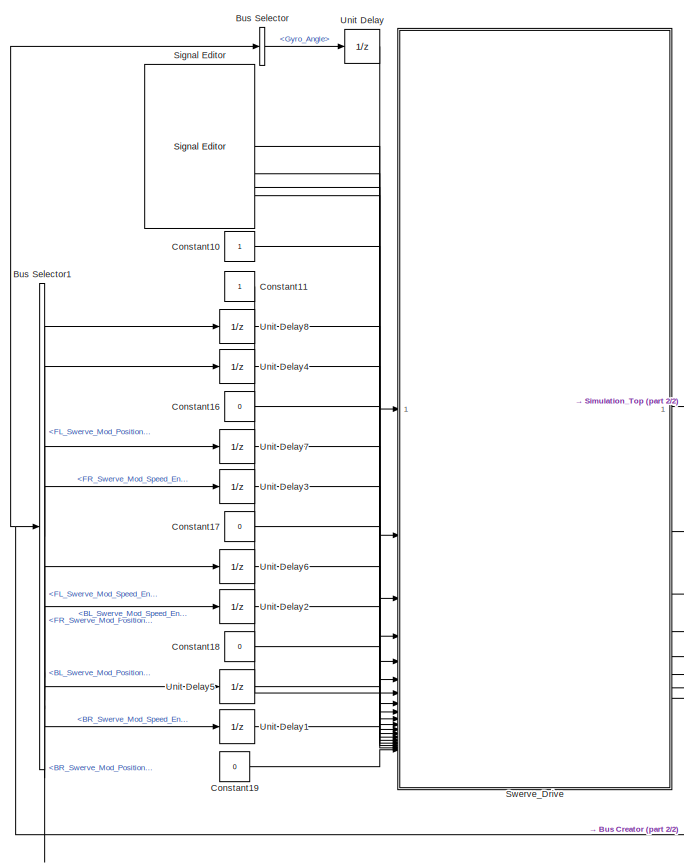
[diagram: root canvas - part 1/2, left side, full height]
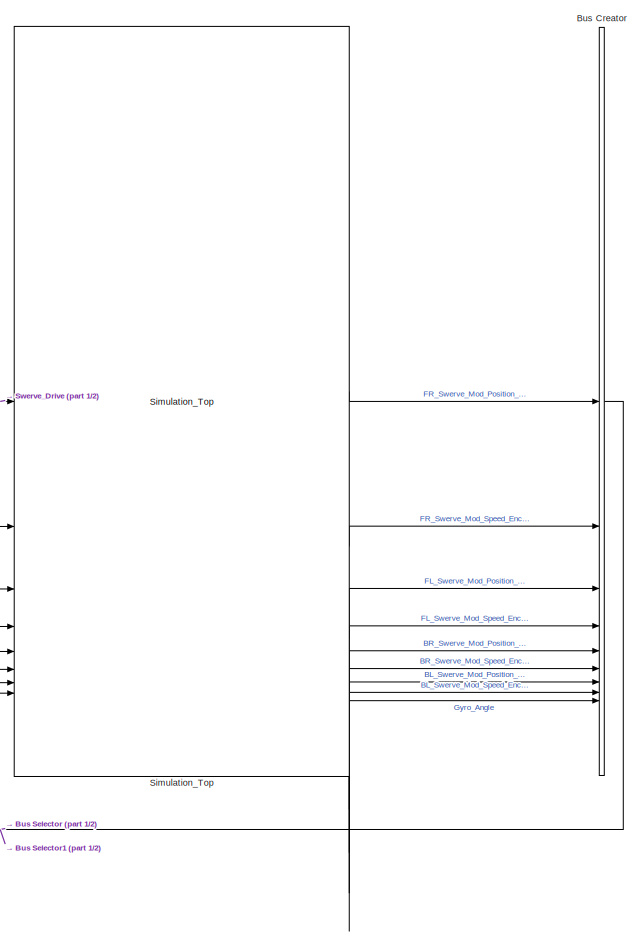
[diagram: root canvas - part 2/2, right side, full height]
MODEL slx_67fc154a9269
KIND model
CONFIG AbsTol = auto
CONFIG EnableMultiTasking = off
CONFIG FixedStep = t_sample
CONFIG MaxStep = auto
CONFIG MinStep = auto
CONFIG RelTol = 1e-3
CONFIG SampleTimeConstraint = Unconstrained
CONFIG SolverName = daessc
CONFIG StartTime = 0.0
CONFIG StopTime = 10
BLOCK [BusCreator] Bus Creator
  DisplayOption = bar
  InheritFromInputs = on
  Inputs = 9
BLOCK [BusSelector] Bus Selector
  OutputSignals = Gyro_Angle
BLOCK [BusSelector] Bus Selector1
  OutputSignals = FL_Swerve_Mod_Position_Encoder,FR_Swerve_Mod_Position_Encoder,BL_Swerve_Mod_Position_Encoder,BR_Swerve_Mod_Position_Encoder,FL_Swerve_Mod_Speed_Encoder,FR_Swerve_Mod_Speed_Encoder,BL_Swerve_Mod_Speed_Encoder,BR_Swerve_Mod_Speed_Encoder
BLOCK [Constant] Constant10
  OutDataTypeStr = boolean
BLOCK [Constant] Constant11
  OutDataTypeStr = boolean
BLOCK [Constant] Constant16
  Value = 0
BLOCK [Constant] Constant17
  Value = 0
BLOCK [Constant] Constant18
  Value = 0
BLOCK [Constant] Constant19
  Value = 0
BLOCK [Reference] Signal Editor  REF=SignalEditorBlockLib/Signal Editor
  LibrarySourceBlock = simulink/Sources/Signal Editor
  SourceBlock = SignalEditorBlockLib/Signal Editor
  SourceType = SignalEditor
  UserDataPersistent = on
BLOCK [Reference] Simulation_Top  REF=Simulation_lib/Simulation_Top
  SourceBlock = Simulation_lib/Simulation_Top
  SourceType = SubSystem
BLOCK [SubSystem] Swerve_Drive
  ReferencedSubsystem = Swerve_Drive_sub
BLOCK [UnitDelay] Unit Delay
  HasFrameUpgradeWarning = on
  SampleTime = -1
BLOCK [UnitDelay] Unit Delay1
  HasFrameUpgradeWarning = on
  SampleTime = -1
BLOCK [UnitDelay] Unit Delay2
  HasFrameUpgradeWarning = on
  SampleTime = -1
BLOCK [UnitDelay] Unit Delay3
  HasFrameUpgradeWarning = on
  SampleTime = -1
BLOCK [UnitDelay] Unit Delay4
  HasFrameUpgradeWarning = on
  SampleTime = -1
BLOCK [UnitDelay] Unit Delay5
  HasFrameUpgradeWarning = on
  SampleTime = -1
BLOCK [UnitDelay] Unit Delay6
  HasFrameUpgradeWarning = on
  SampleTime = -1
BLOCK [UnitDelay] Unit Delay7
  HasFrameUpgradeWarning = on
  SampleTime = -1
BLOCK [UnitDelay] Unit Delay8
  HasFrameUpgradeWarning = on
  SampleTime = -1
NET Bus Creator:1 -> Bus Selector1:1, Bus Selector:1
LINE Bus Selector1:1 -> Unit Delay8:1
LINE Bus Selector1:2 -> Unit Delay7:1
LINE Bus Selector1:3 -> Unit Delay6:1
LINE Bus Selector1:4 -> Unit Delay5:1
LINE Bus Selector1:5 -> Unit Delay4:1
LINE Bus Selector1:6 -> Unit Delay3:1
LINE Bus Selector1:7 -> Unit Delay2:1
LINE Bus Selector1:8 -> Unit Delay1:1
LINE Bus Selector:1 -> Unit Delay:1
LINE Constant10:1 -> Swerve_Drive:6
LINE Constant11:1 -> Swerve_Drive:7
LINE Constant16:1 -> Swerve_Drive:10
LINE Constant17:1 -> Swerve_Drive:13
LINE Constant18:1 -> Swerve_Drive:16
LINE Constant19:1 -> Swerve_Drive:19
LINE Signal Editor:1 -> Swerve_Drive:2
LINE Signal Editor:2 -> Swerve_Drive:3
LINE Signal Editor:3 -> Swerve_Drive:4
LINE Signal Editor:4 -> Swerve_Drive:5
LINE Simulation_Top:1 -> Bus Creator:1
LINE Simulation_Top:2 -> Bus Creator:2
LINE Simulation_Top:3 -> Bus Creator:3
LINE Simulation_Top:4 -> Bus Creator:4
LINE Simulation_Top:5 -> Bus Creator:5
LINE Simulation_Top:6 -> Bus Creator:6
LINE Simulation_Top:7 -> Bus Creator:7
LINE Simulation_Top:8 -> Bus Creator:8
LINE Simulation_Top:9 -> Bus Creator:9
LINE Swerve_Drive:1 -> Simulation_Top:1
LINE Swerve_Drive:2 -> Simulation_Top:2
LINE Swerve_Drive:3 -> Simulation_Top:3
LINE Swerve_Drive:4 -> Simulation_Top:4
LINE Swerve_Drive:5 -> Simulation_Top:5
LINE Swerve_Drive:6 -> Simulation_Top:6
LINE Swerve_Drive:7 -> Simulation_Top:7
LINE Swerve_Drive:8 -> Simulation_Top:8
LINE Unit Delay1:1 -> Swerve_Drive:18
LINE Unit Delay2:1 -> Swerve_Drive:15
LINE Unit Delay3:1 -> Swerve_Drive:12
LINE Unit Delay4:1 -> Swerve_Drive:9
LINE Unit Delay5:1 -> Swerve_Drive:17
LINE Unit Delay6:1 -> Swerve_Drive:14
LINE Unit Delay7:1 -> Swerve_Drive:11
LINE Unit Delay8:1 -> Swerve_Drive:8
LINE Unit Delay:1 -> Swerve_Drive:1
note: NET lines group one-source signal fan-out (src -> all destinations, sorted); 1:1 wires keep LINE
